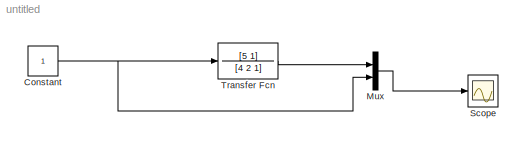
MODEL untitled
KIND model
BLOCK [Constant] Constant
  OutDataType = fixdt(1, 16)
  OutScaling = 2^0
BLOCK [Mux] Mux
  DisplayOption = bar
  Inputs = 2
  Ports = [2, 1]
BLOCK [Scope] Scope
  DataFormat = StructureWithTime
  Floating = off
  NumInputPorts = 1
  Ports = [1]
  SampleTime = 0
  ZoomMode = yonly
BLOCK [TransferFcn] Transfer Fcn
  Denominator = [4 2 1]
  Numerator = [5 1]
NET Constant:1 -> Mux:2, Transfer Fcn:1
LINE Mux:1 -> Scope:1
LINE Transfer Fcn:1 -> Mux:1
note: NET lines group one-source signal fan-out (src -> all destinations, sorted); 1:1 wires keep LINE
